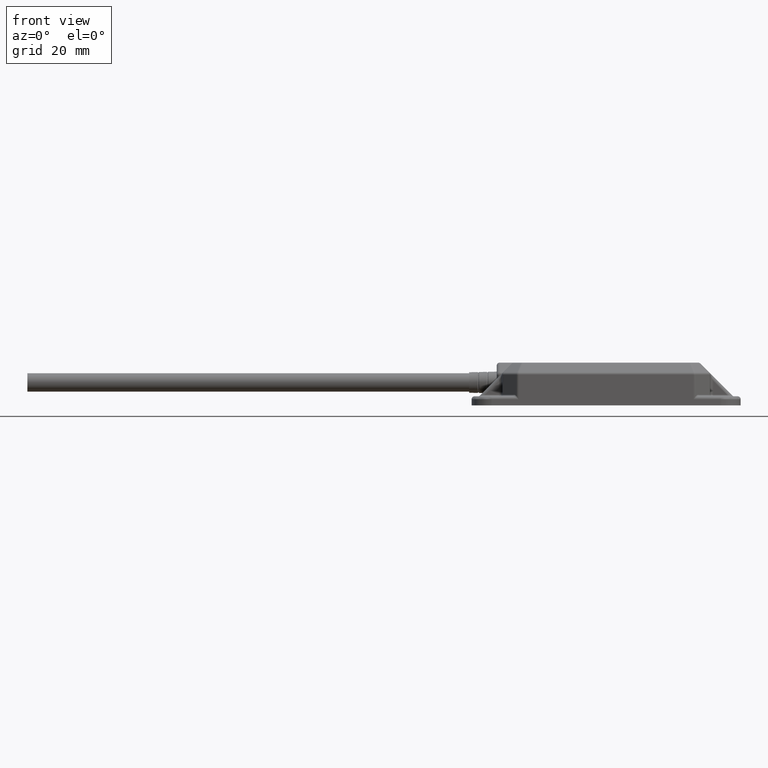
[diagram: clean part render]
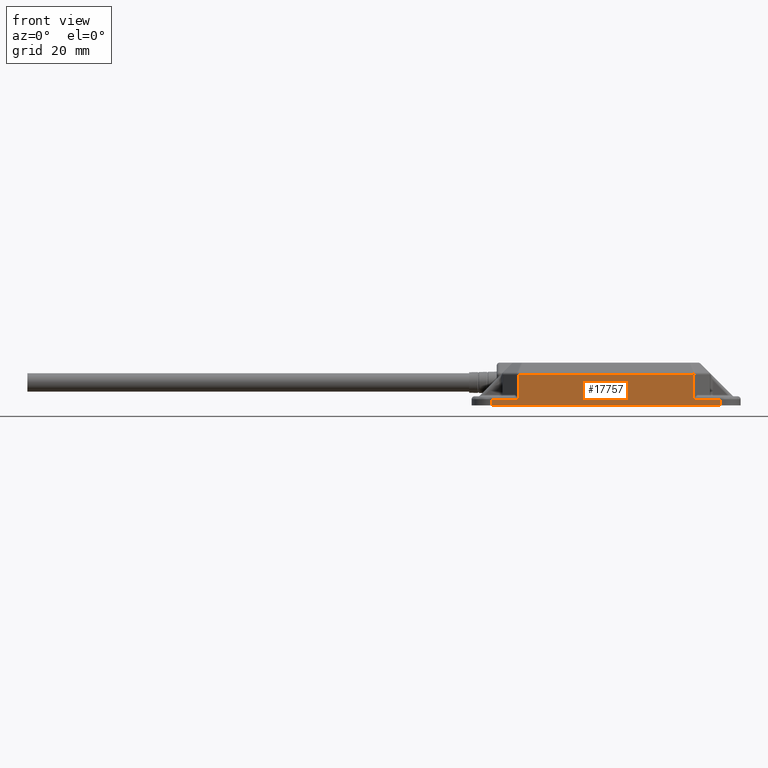
[diagram: same view with one face highlighted and labeled with its STEP entity id]
A machine part, front view. The second image highlights one B-rep face of the part: STEP entity #17757.
In plain terms, the highlighted planar face has unit normal (0, 1, -0).
Its self-contained STEP definition (entity closure, byte-faithful):
#347 = DIRECTION ( 'NONE',  ( -0.0000000000000000000, -0.0000000000000000000, 1.000000000000000000 ) ) ;
#483 = CARTESIAN_POINT ( 'NONE',  ( 2.857708127465624000, 0.9842519685039369200, 0.07874015748031494600 ) ) ;
#650 = LINE ( 'NONE', #1995, #15856 ) ;
#1024 = FACE_OUTER_BOUND ( 'NONE', #12229, .T. ) ;
#1209 = AXIS2_PLACEMENT_3D ( 'NONE', #10529, #23602, #1376 ) ;
#1332 = VERTEX_POINT ( 'NONE', #18296 ) ;
#1376 = DIRECTION ( 'NONE',  ( 0.0000000000000000000, -0.0000000000000000000, -1.000000000000000000 ) ) ;
#1743 = CARTESIAN_POINT ( 'NONE',  ( 2.857708127465624000, 0.9842519685039370400, 0.5511811023622047400 ) ) ;
#1985 = LINE ( 'NONE', #21103, #13049 ) ;
#1995 = CARTESIAN_POINT ( 'NONE',  ( 0.6068588016682341400, 0.9842519685039370400, 0.5511811023622047400 ) ) ;
#2855 = VECTOR ( 'NONE', #5879, 39.37007874015748100 ) ;
#3052 = LINE ( 'NONE', #17213, #3628 ) ;
#3282 = ORIENTED_EDGE ( 'NONE', *, *, #10253, .F. ) ;
#3303 = CARTESIAN_POINT ( 'NONE',  ( 0.6068588016682341400, 0.9842519685039369200, 0.07874015748031491800 ) ) ;
#3466 = ORIENTED_EDGE ( 'NONE', *, *, #8199, .F. ) ;
#3628 = VECTOR ( 'NONE', #10112, 39.37007874015748100 ) ;
#4077 = CARTESIAN_POINT ( 'NONE',  ( 3.208661417322834300, 0.9842519685039372600, 0.07874015748031496000 ) ) ;
#4388 = LINE ( 'NONE', #14762, #18752 ) ;
#4988 = EDGE_CURVE ( 'NONE', #23246, #6314, #1985, .T. ) ;
#5479 = DIRECTION ( 'NONE',  ( 0.0000000000000000000, -0.0000000000000000000, -1.000000000000000000 ) ) ;
#5811 = CARTESIAN_POINT ( 'NONE',  ( 3.208661417322834300, 0.9842519685039373700, 0.5511811023622047400 ) ) ;
#5879 = DIRECTION ( 'NONE',  ( 0.0000000000000000000, -0.0000000000000000000, -1.000000000000000000 ) ) ;
#6314 = VERTEX_POINT ( 'NONE', #20990 ) ;
#6690 = ORIENTED_EDGE ( 'NONE', *, *, #19625, .F. ) ;
#6755 = CARTESIAN_POINT ( 'NONE',  ( 2.857708127465624900, 0.9842519685039370400, 0.3970782062057837100 ) ) ;
#7668 = VERTEX_POINT ( 'NONE', #6755 ) ;
#7725 = ORIENTED_EDGE ( 'NONE', *, *, #4988, .F. ) ;
#7737 = CARTESIAN_POINT ( 'NONE',  ( 0.2559055118110236700, 0.9842519685039370400, 0.5511811023622047400 ) ) ;
#8199 = EDGE_CURVE ( 'NONE', #1332, #23246, #650, .T. ) ;
#10112 = DIRECTION ( 'NONE',  ( -1.000000000000000000, -0.0000000000000000000, -0.0000000000000000000 ) ) ;
#10253 = EDGE_CURVE ( 'NONE', #7668, #1332, #19988, .T. ) ;
#10529 = CARTESIAN_POINT ( 'NONE',  ( 0.0000000000000000000, 0.9842519685039370400, 0.5511811023622047400 ) ) ;
#11883 = EDGE_CURVE ( 'NONE', #14126, #17977, #4388, .T. ) ;
#12229 = EDGE_LOOP ( 'NONE', ( #3282, #6690, #20421, #13862, #23846, #17694, #7725, #3466 ) ) ;
#12652 = VECTOR ( 'NONE', #17324, 39.37007874015748100 ) ;
#12765 = LINE ( 'NONE', #7737, #2855 ) ;
#13049 = VECTOR ( 'NONE', #13626, 39.37007874015748100 ) ;
#13626 = DIRECTION ( 'NONE',  ( -1.000000000000000000, -0.0000000000000000000, -0.0000000000000000000 ) ) ;
#13862 = ORIENTED_EDGE ( 'NONE', *, *, #16009, .F. ) ;
#14126 = VERTEX_POINT ( 'NONE', #16350 ) ;
#14222 = VERTEX_POINT ( 'NONE', #483 ) ;
#14762 = CARTESIAN_POINT ( 'NONE',  ( 0.0000000000000000000, 0.9842519685039370400, 0.0000000000000000000 ) ) ;
#15291 = VERTEX_POINT ( 'NONE', #4077 ) ;
#15533 = CARTESIAN_POINT ( 'NONE',  ( 0.0000000000000000000, 0.9842519685039370400, 0.3970782062057836000 ) ) ;
#15856 = VECTOR ( 'NONE', #5479, 39.37007874015748100 ) ;
#16009 = EDGE_CURVE ( 'NONE', #17977, #15291, #20374, .T. ) ;
#16016 = VECTOR ( 'NONE', #24217, 39.37007874015748100 ) ;
#16350 = CARTESIAN_POINT ( 'NONE',  ( 0.2559055118110236700, 0.9842519685039370400, 0.0000000000000000000 ) ) ;
#17213 = CARTESIAN_POINT ( 'NONE',  ( 0.0000000000000000000, 0.9842519685039370400, 0.07874015748031496000 ) ) ;
#17324 = DIRECTION ( 'NONE',  ( -1.000000000000000000, -0.0000000000000000000, -0.0000000000000000000 ) ) ;
#17694 = ORIENTED_EDGE ( 'NONE', *, *, #19766, .F. ) ;
#17757 = ADVANCED_FACE ( 'NONE', ( #1024 ), #21891, .F. ) ;
#17977 = VERTEX_POINT ( 'NONE', #20970 ) ;
#18296 = CARTESIAN_POINT ( 'NONE',  ( 0.6068588016682341400, 0.9842519685039370400, 0.3970782062057836000 ) ) ;
#18752 = VECTOR ( 'NONE', #24112, 39.37007874015748100 ) ;
#19625 = EDGE_CURVE ( 'NONE', #14222, #7668, #24200, .T. ) ;
#19766 = EDGE_CURVE ( 'NONE', #6314, #14126, #12765, .T. ) ;
#19988 = LINE ( 'NONE', #15533, #12652 ) ;
#20374 = LINE ( 'NONE', #5811, #23897 ) ;
#20421 = ORIENTED_EDGE ( 'NONE', *, *, #21938, .F. ) ;
#20970 = CARTESIAN_POINT ( 'NONE',  ( 3.208661417322834300, 0.9842519685039372600, 0.0000000000000000000 ) ) ;
#20990 = CARTESIAN_POINT ( 'NONE',  ( 0.2559055118110236700, 0.9842519685039370400, 0.07874015748031496000 ) ) ;
#21103 = CARTESIAN_POINT ( 'NONE',  ( 0.0000000000000000000, 0.9842519685039370400, 0.07874015748031496000 ) ) ;
#21891 = PLANE ( 'NONE',  #1209 ) ;
#21938 = EDGE_CURVE ( 'NONE', #15291, #14222, #3052, .T. ) ;
#23246 = VERTEX_POINT ( 'NONE', #3303 ) ;
#23602 = DIRECTION ( 'NONE',  ( 0.0000000000000000000, -1.000000000000000000, 0.0000000000000000000 ) ) ;
#23846 = ORIENTED_EDGE ( 'NONE', *, *, #11883, .F. ) ;
#23897 = VECTOR ( 'NONE', #347, 39.37007874015748100 ) ;
#24112 = DIRECTION ( 'NONE',  ( 1.000000000000000000, -0.0000000000000000000, 0.0000000000000000000 ) ) ;
#24200 = LINE ( 'NONE', #1743, #16016 ) ;
#24217 = DIRECTION ( 'NONE',  ( -0.0000000000000000000, 0.0000000000000000000, 1.000000000000000000 ) ) ;